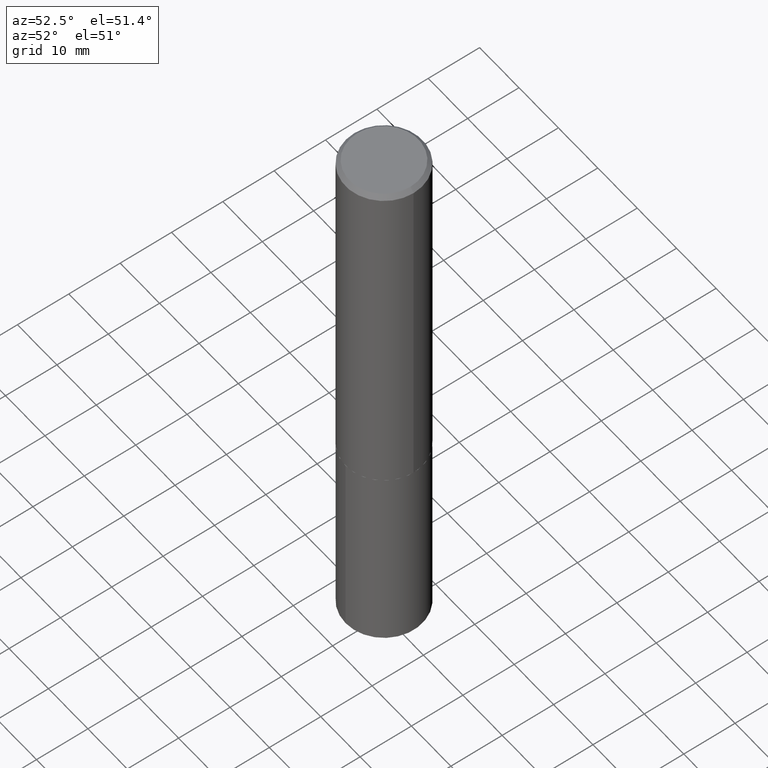
[diagram: clean part render]
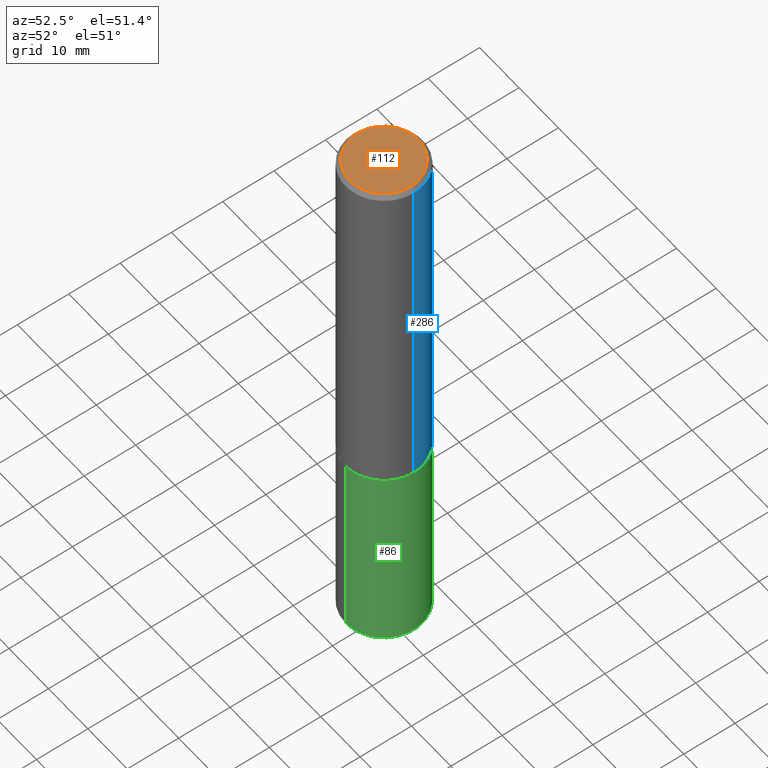
[diagram: same view with three faces highlighted in distinct colors, each labeled with its STEP entity id]
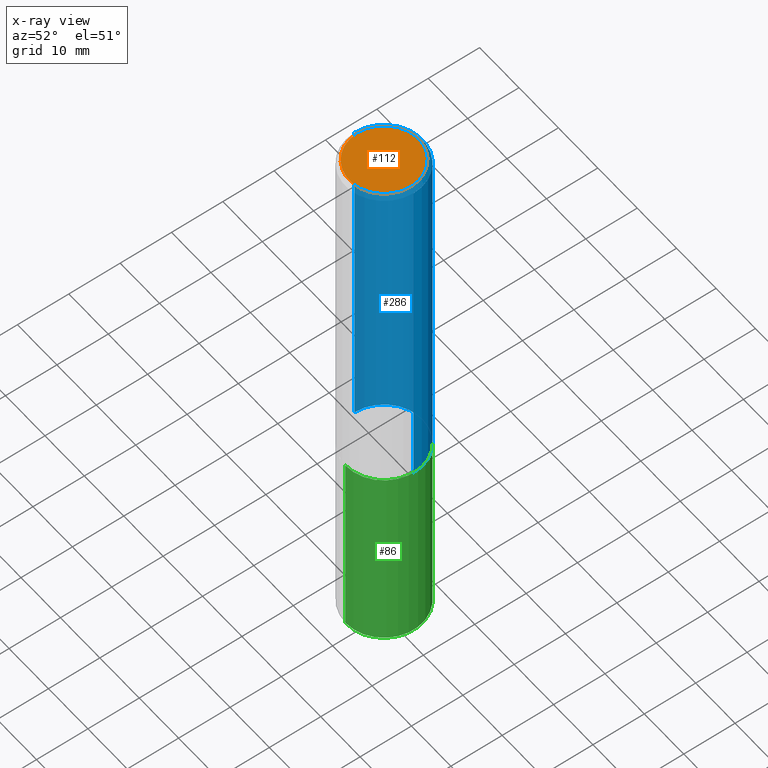
[diagram: x-ray of the same camera — body ghosted, the three highlighted faces saturated]
A machine part, auxiliary view with three faces highlighted in distinct colors.
The next image is the same camera in x-ray (body ghosted, the three faces saturated) — at least one of them is partly hidden behind the body in this view.
Their STEP definitions:

[orange] entity #112 — the highlighted planar face has unit normal (0, -0, -1).
#21 = CARTESIAN_POINT ( 'NONE',  ( -2.949913012720698115E-47, 4.211693974208535336E-33, 1.206277097160147711E-18 ) ) ;
#23 = EDGE_CURVE ( 'NONE', #147, #82, #388, .T. ) ;
#28 = CARTESIAN_POINT ( 'NONE',  ( 0.2640500000000000069, -1.973264173446177597E-15, 1.206277097173494598E-18 ) ) ;
#60 = CARTESIAN_POINT ( 'NONE',  ( -0.2640500000000000069, 1.898405690962482095E-15, 1.206277097147062172E-18 ) ) ;
#79 = CARTESIAN_POINT ( 'NONE',  ( -1.474956506360349058E-47, 2.105846987104267668E-33, 6.031385485800738553E-19 ) ) ;
#82 = VERTEX_POINT ( 'NONE', #60 ) ;
#96 = DIRECTION ( 'NONE',  ( 1.000000000000000000, -6.982962677686266711E-15, 4.876208427331695751E-29 ) ) ;
#99 = AXIS2_PLACEMENT_3D ( 'NONE', #79, #175, #226 ) ;
#103 = PLANE ( 'NONE',  #99 ) ;
#105 = DIRECTION ( 'NONE',  ( 1.000000000000000000, -6.982962677686266711E-15, 4.876208427331695751E-29 ) ) ;
#110 = AXIS2_PLACEMENT_3D ( 'NONE', #21, #170, #105 ) ;
#112 = ADVANCED_FACE ( 'NONE', ( #261 ), #103, .F. ) ;
#147 = VERTEX_POINT ( 'NONE', #28 ) ;
#170 = DIRECTION ( 'NONE',  ( -2.445468806185136597E-29, 3.491481338843145583E-15, 1.000000000000000000 ) ) ;
#175 = DIRECTION ( 'NONE',  ( 2.438088387897960049E-29, -3.491481338843145188E-15, -1.000000000000000000 ) ) ;
#204 = ORIENTED_EDGE ( 'NONE', *, *, #358, .T. ) ;
#211 = AXIS2_PLACEMENT_3D ( 'NONE', #318, #277, #96 ) ;
#226 = DIRECTION ( 'NONE',  ( -1.000000000000000000, 6.982962677686265922E-15, -4.876176775795935793E-29 ) ) ;
#238 = EDGE_LOOP ( 'NONE', ( #204, #366 ) ) ;
#261 = FACE_OUTER_BOUND ( 'NONE', #238, .T. ) ;
#273 = CIRCLE ( 'NONE', #110, 0.2640500000000000069 ) ;
#277 = DIRECTION ( 'NONE',  ( -2.445468806185136597E-29, 3.491481338843145583E-15, 1.000000000000000000 ) ) ;
#318 = CARTESIAN_POINT ( 'NONE',  ( -2.949913012720698115E-47, 4.211693974208535336E-33, 1.206277097160147711E-18 ) ) ;
#358 = EDGE_CURVE ( 'NONE', #82, #147, #273, .T. ) ;
#366 = ORIENTED_EDGE ( 'NONE', *, *, #23, .T. ) ;
#388 = CIRCLE ( 'NONE', #211, 0.2640500000000000069 ) ;

[blue] entity #286 — the highlighted cylindrical surface (partial cylindrical patch) has radius 7.5006 mm, axis along (-0, 0, 1).
#4 = ORIENTED_EDGE ( 'NONE', *, *, #309, .F. ) ;
#9 = DIRECTION ( 'NONE',  ( -2.445468806185136597E-29, 3.491481338843145583E-15, 1.000000000000000000 ) ) ;
#24 = DIRECTION ( 'NONE',  ( -2.445468806185136877E-29, 3.491481338843145188E-15, 1.000000000000000000 ) ) ;
#46 = CARTESIAN_POINT ( 'NONE',  ( 0.2953000000000000069, -2.171177670559603663E-15, -0.03125000000000022898 ) ) ;
#68 = DIRECTION ( 'NONE',  ( 1.000000000000000000, -6.982962677686268288E-15, 0.000000000000000000 ) ) ;
#74 = DIRECTION ( 'NONE',  ( -2.445468806185136597E-29, 3.491481338843145583E-15, 1.000000000000000000 ) ) ;
#76 = DIRECTION ( 'NONE',  ( -2.445468806185136597E-29, 3.491481338843145583E-15, 1.000000000000000000 ) ) ;
#104 = DIRECTION ( 'NONE',  ( 1.000000000000000000, -6.982962677686268288E-15, 4.876176775795936353E-29 ) ) ;
#113 = VERTEX_POINT ( 'NONE', #274 ) ;
#118 = EDGE_LOOP ( 'NONE', ( #377, #315, #4, #188 ) ) ;
#130 = DIRECTION ( 'NONE',  ( 1.000000000000000000, -6.982962677686267499E-15, 0.000000000000000000 ) ) ;
#131 = CARTESIAN_POINT ( 'NONE',  ( 0.2953000000000003955, -1.168284570790304451E-14, -2.755499999999999616 ) ) ;
#133 = CARTESIAN_POINT ( 'NONE',  ( 0.000000000000000000, 0.000000000000000000, 0.000000000000000000 ) ) ;
#138 = VECTOR ( 'NONE', #210, 39.37007874015748143 ) ;
#172 = EDGE_CURVE ( 'NONE', #285, #380, #289, .T. ) ;
#174 = FACE_OUTER_BOUND ( 'NONE', #118, .T. ) ;
#188 = ORIENTED_EDGE ( 'NONE', *, *, #374, .F. ) ;
#200 = LINE ( 'NONE', #290, #236 ) ;
#210 = DIRECTION ( 'NONE',  ( -2.445468806185136877E-29, 3.491481338843145188E-15, 1.000000000000000000 ) ) ;
#219 = LINE ( 'NONE', #260, #138 ) ;
#235 = AXIS2_PLACEMENT_3D ( 'NONE', #325, #76, #130 ) ;
#236 = VECTOR ( 'NONE', #24, 39.37007874015748143 ) ;
#249 = VERTEX_POINT ( 'NONE', #46 ) ;
#250 = CARTESIAN_POINT ( 'NONE',  ( 6.738489295443143094E-29, -9.620776829182285610E-15, -2.755499999999999616 ) ) ;
#258 = EDGE_CURVE ( 'NONE', #380, #113, #219, .T. ) ;
#260 = CARTESIAN_POINT ( 'NONE',  ( -0.2953000000000001735, 2.098232698699577081E-15, -1.452561532152274683E-29 ) ) ;
#274 = CARTESIAN_POINT ( 'NONE',  ( -0.2953000000000000069, -2.766710111810989090E-15, -0.03125000000000022898 ) ) ;
#285 = VERTEX_POINT ( 'NONE', #131 ) ;
#286 = ADVANCED_FACE ( 'NONE', ( #174 ), #321, .T. ) ;
#289 = CIRCLE ( 'NONE', #363, 0.2953000000000003955 ) ;
#290 = CARTESIAN_POINT ( 'NONE',  ( 0.2953000000000001735, -2.062068878720756141E-15, 1.439935001892540778E-29 ) ) ;
#305 = AXIS2_PLACEMENT_3D ( 'NONE', #133, #74, #104 ) ;
#309 = EDGE_CURVE ( 'NONE', #249, #113, #362, .T. ) ;
#315 = ORIENTED_EDGE ( 'NONE', *, *, #258, .T. ) ;
#321 = CYLINDRICAL_SURFACE ( 'NONE', #305, 0.2953000000000001735 ) ;
#325 = CARTESIAN_POINT ( 'NONE',  ( 7.642090019328607041E-31, -1.091087918388490883E-16, -0.03125000000000022898 ) ) ;
#362 = CIRCLE ( 'NONE', #235, 0.2953000000000000069 ) ;
#363 = AXIS2_PLACEMENT_3D ( 'NONE', #250, #9, #68 ) ;
#374 = EDGE_CURVE ( 'NONE', #285, #249, #200, .T. ) ;
#377 = ORIENTED_EDGE ( 'NONE', *, *, #172, .T. ) ;
#380 = VERTEX_POINT ( 'NONE', #384 ) ;
#384 = CARTESIAN_POINT ( 'NONE',  ( -0.2953000000000003955, -7.522544130482707345E-15, -2.755499999999999616 ) ) ;

[green] entity #86 — the highlighted cylindrical surface (partial cylindrical patch) has radius 7.5006 mm, axis along (-0, 0, 1).
#17 = DIRECTION ( 'NONE',  ( -2.445353893289901257E-29, 3.491645900649558519E-15, 1.000000000000000000 ) ) ;
#33 = VECTOR ( 'NONE', #253, 39.37007874015748143 ) ;
#36 = CARTESIAN_POINT ( 'NONE',  ( -2.062068878720649644E-15, -0.2953000000000150504, -4.290974603475088855 ) ) ;
#41 = CARTESIAN_POINT ( 'NONE',  ( 6.739712029846235896E-29, -9.622522569851707902E-15, -2.755999999999999783 ) ) ;
#45 = LINE ( 'NONE', #120, #33 ) ;
#48 = AXIS2_PLACEMENT_3D ( 'NONE', #41, #17, #122 ) ;
#53 = VECTOR ( 'NONE', #142, 39.37007874015748143 ) ;
#80 = VERTEX_POINT ( 'NONE', #279 ) ;
#86 = ADVANCED_FACE ( 'NONE', ( #184 ), #154, .T. ) ;
#90 = EDGE_CURVE ( 'NONE', #176, #80, #45, .T. ) ;
#120 = CARTESIAN_POINT ( 'NONE',  ( -2.062068878720687115E-15, -0.2953000000000096659, -2.755999999999998895 ) ) ;
#122 = DIRECTION ( 'NONE',  ( -6.982962677686266711E-15, -1.000000000000000000, 3.700437512582815297E-15 ) ) ;
#123 = DIRECTION ( 'NONE',  ( -2.445353893289901257E-29, 3.491645900649558519E-15, 1.000000000000000000 ) ) ;
#132 = LINE ( 'NONE', #368, #53 ) ;
#140 = EDGE_CURVE ( 'NONE', #333, #370, #132, .T. ) ;
#142 = DIRECTION ( 'NONE',  ( -2.445353893289901257E-29, 3.491645900649558124E-15, 1.000000000000000000 ) ) ;
#144 = AXIS2_PLACEMENT_3D ( 'NONE', #161, #371, #284 ) ;
#154 = CYLINDRICAL_SURFACE ( 'NONE', #48, 0.2953000000000000069 ) ;
#161 = CARTESIAN_POINT ( 'NONE',  ( 6.739712029846235896E-29, -9.622522569851707902E-15, -2.755999999999999783 ) ) ;
#176 = VERTEX_POINT ( 'NONE', #36 ) ;
#178 = EDGE_CURVE ( 'NONE', #80, #370, #327, .T. ) ;
#184 = FACE_OUTER_BOUND ( 'NONE', #382, .T. ) ;
#195 = EDGE_CURVE ( 'NONE', #176, #333, #268, .T. ) ;
#196 = AXIS2_PLACEMENT_3D ( 'NONE', #222, #123, #347 ) ;
#222 = CARTESIAN_POINT ( 'NONE',  ( 1.049326815255516956E-28, -1.498211035167668908E-14, -4.290974603475089744 ) ) ;
#230 = CARTESIAN_POINT ( 'NONE',  ( 2.098232698699681211E-15, 0.2952999999999904035, -2.756000000000000671 ) ) ;
#242 = ORIENTED_EDGE ( 'NONE', *, *, #195, .T. ) ;
#253 = DIRECTION ( 'NONE',  ( -2.445353893289901257E-29, 3.491645900649558124E-15, 1.000000000000000000 ) ) ;
#268 = CIRCLE ( 'NONE', #196, 0.2953000000000000069 ) ;
#271 = ORIENTED_EDGE ( 'NONE', *, *, #178, .F. ) ;
#279 = CARTESIAN_POINT ( 'NONE',  ( -2.062068878720687115E-15, -0.2953000000000096659, -2.755999999999998895 ) ) ;
#284 = DIRECTION ( 'NONE',  ( -6.982962677686266711E-15, -1.000000000000000000, 3.700437512582815297E-15 ) ) ;
#293 = CARTESIAN_POINT ( 'NONE',  ( 2.098232698699680817E-15, 0.2952999999999850744, -4.290974603475090632 ) ) ;
#300 = ORIENTED_EDGE ( 'NONE', *, *, #90, .F. ) ;
#327 = CIRCLE ( 'NONE', #144, 0.2953000000000000069 ) ;
#333 = VERTEX_POINT ( 'NONE', #293 ) ;
#335 = ORIENTED_EDGE ( 'NONE', *, *, #140, .T. ) ;
#347 = DIRECTION ( 'NONE',  ( -6.982962677686266711E-15, -1.000000000000000000, 3.700437512582815297E-15 ) ) ;
#368 = CARTESIAN_POINT ( 'NONE',  ( 2.098232698699643346E-15, 0.2952999999999904035, -2.756000000000000671 ) ) ;
#370 = VERTEX_POINT ( 'NONE', #230 ) ;
#371 = DIRECTION ( 'NONE',  ( -2.445353893289901257E-29, 3.491645900649558519E-15, 1.000000000000000000 ) ) ;
#382 = EDGE_LOOP ( 'NONE', ( #242, #335, #271, #300 ) ) ;